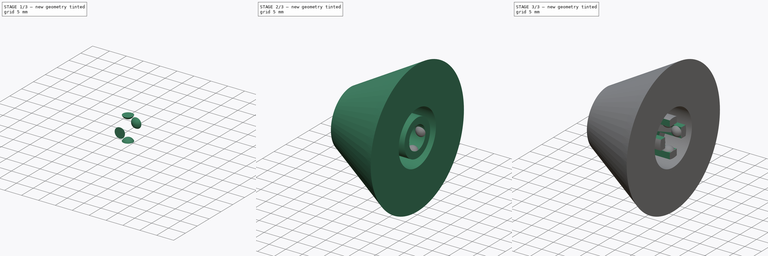
[diagram: build sequence overview — one tinted view per stage of 3, left to right]
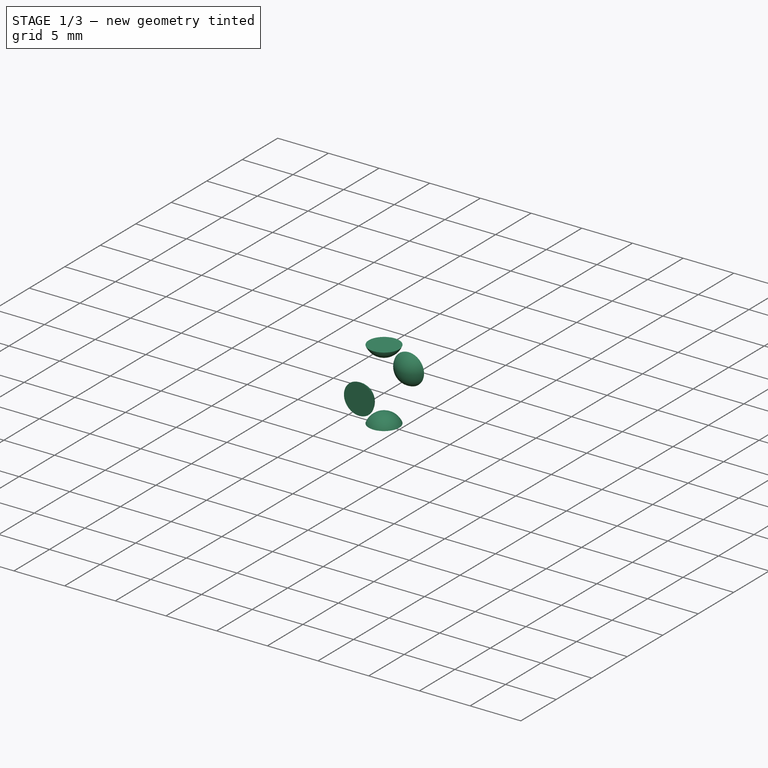
[diagram: stage 1 of 3 — iso view after this stage's code; geometry added in this stage tinted green]
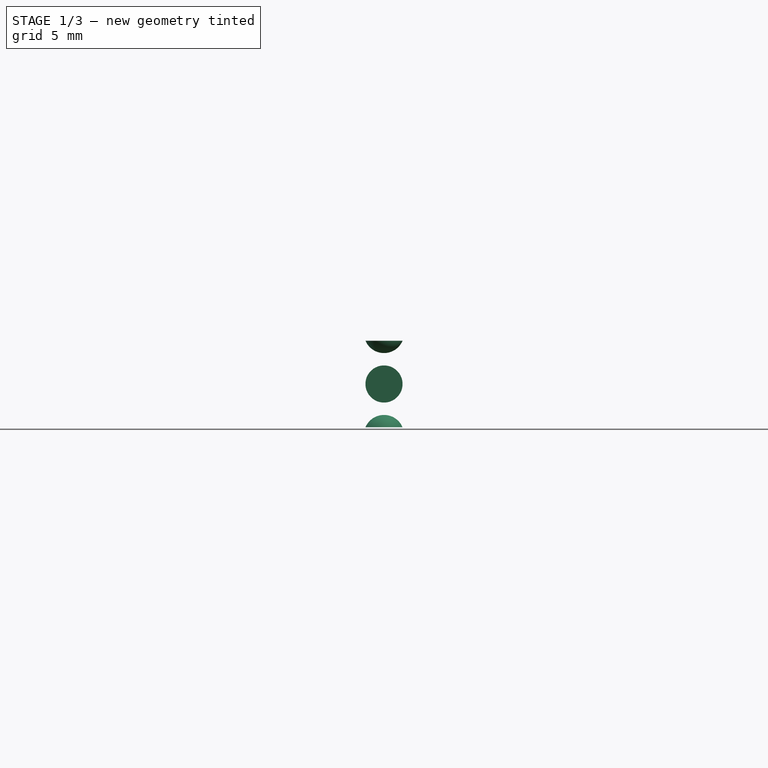
[diagram: stage 1 of 3 — front view after this stage's code; geometry added in this stage tinted green]
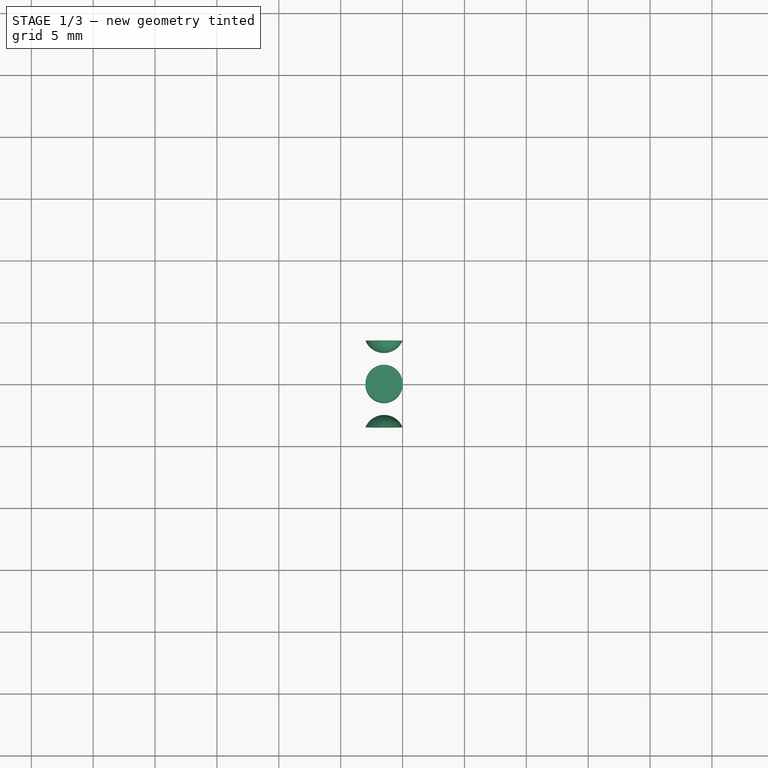
[diagram: stage 1 of 3 — top view after this stage's code; geometry added in this stage tinted green]
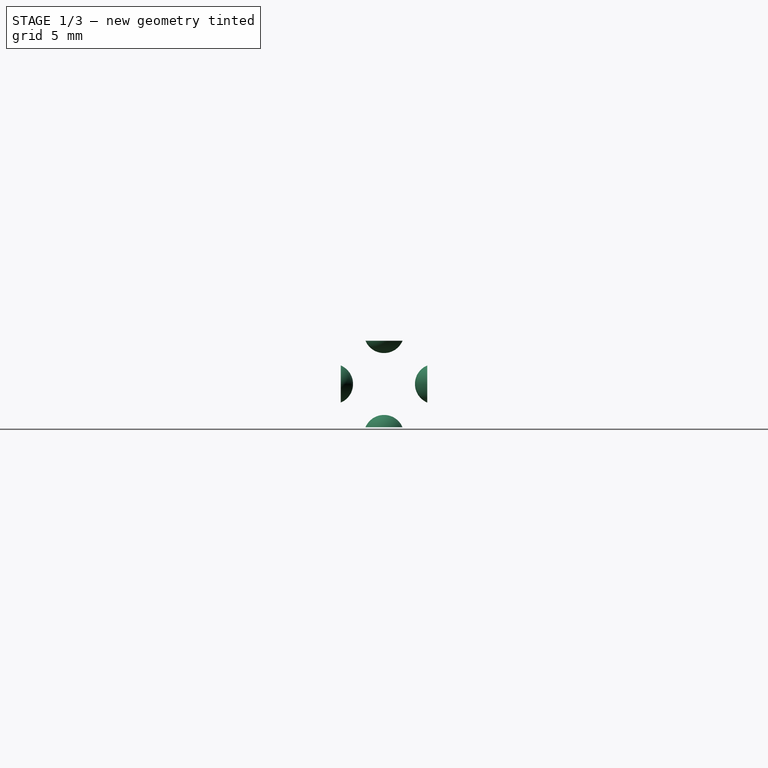
[diagram: stage 1 of 3 — right view after this stage's code; geometry added in this stage tinted green]
FCSTD DOCUMENT  (FreeCAD 0.17R13541 (Git))
Label: SewingmachineThreadStop
License: All rights reserved
LicenseURL: http://en.wikipedia.org/wiki/All_rights_reserved
objects: Sketcher::SketchObject×2, PartDesign::Revolution×1, PartDesign::Pocket×1, Spreadsheet::Sheet×1, Part::Sphere×1, Part::FeaturePython×1, PartDesign::Boolean×1, PartDesign::Body×1
note: 10 computed .brp shape members not serialized (recipe doc carries the construction recipe); baked Part::Feature solids carry a one-line shape summary decoded from their .brp

FEATURE [Spreadsheet::Sheet] Spreadsheet
  cells = A1=Clip bulge radius; B1(Clipbulgeradius)==Sketch001.Constraints.clipWidth / 2; C1=(r'); A2=clipBulgeHeight; B2(clipBulgeHeight)==1mm; C2=(h); A3=sphereRadius; B3(sphereRadius)==(Clipbulgeradius ^ 2 + clipBulgeHeight ^ 2) / (2 * clipBulgeHeight); A4=sphereAngle; B4(sphereAngle)==atan((sphereRadius - clipBulgeHeight) / Clipbulgeradius)
FEATURE [Part::Sphere] Sphere
  Angle1 = 22.6199
  Angle2 = 90
  Angle3 = 360
  AttacherType = Attacher::AttachEngine3D
  Placement = pos=(-1.5,-2e-08,-4.125) rot=(0,0,1;0rad)
  Radius = 1.625
  expr: Placement.Base.z = -Sketch.Constraints.radiusHole - Spreadsheet.sphereRadius + Spreadsheet.clipBulgeHeight
  expr: Placement.Base.x = -Spreadsheet.Clipbulgeradius
  expr: Radius = Spreadsheet.sphereRadius
  expr: Angle1 = Spreadsheet.sphereAngle
FEATURE [Part::FeaturePython] Array  # Draft array (typed FeaturePython)
  Angle = 360
  ArrayType = 1
  Axis = (1,0,0)
  Base = -> Sphere
  Center = (0,0,0)
  Fuse = false
  IntervalAxis = (0,0,0)
  IntervalX = (1,0,0)
  IntervalY = (0,1,0)
  IntervalZ = (0,0,0)
  NumberPolar = 4
  NumberX = 1
  NumberY = 1
  NumberZ = 1
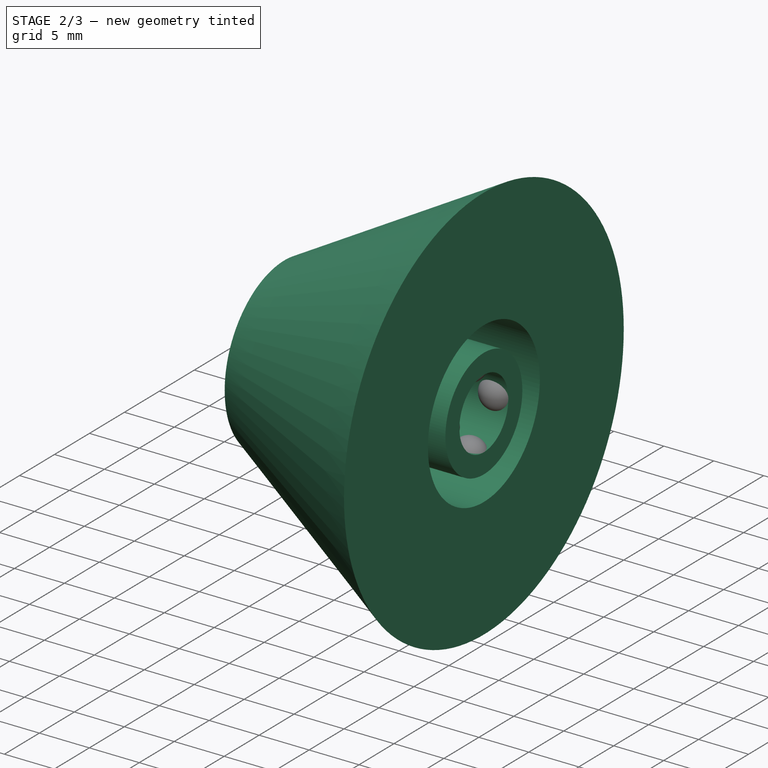
[diagram: stage 2 of 3 — iso view after this stage's code; geometry added in this stage tinted green]
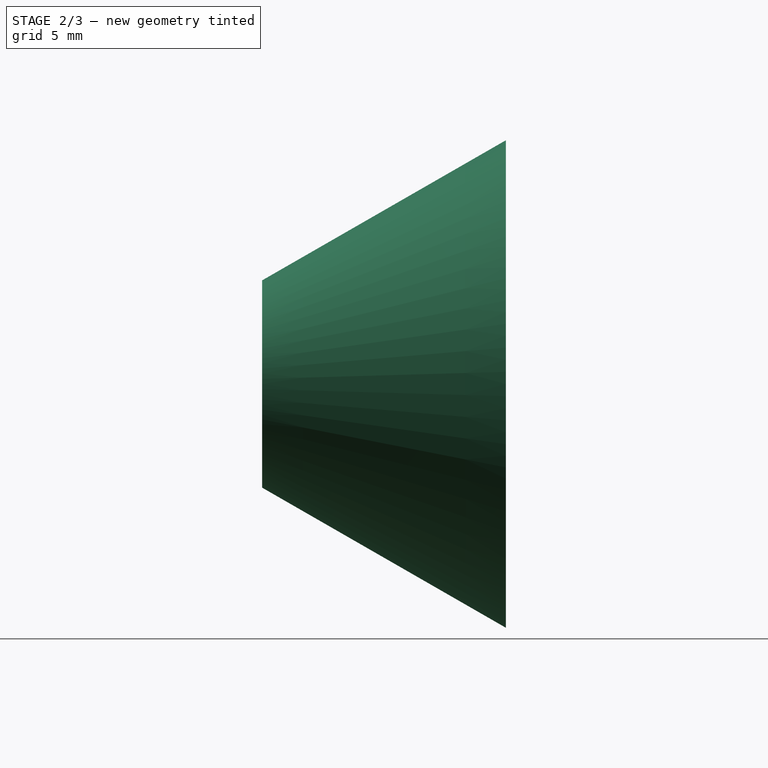
[diagram: stage 2 of 3 — front view after this stage's code; geometry added in this stage tinted green]
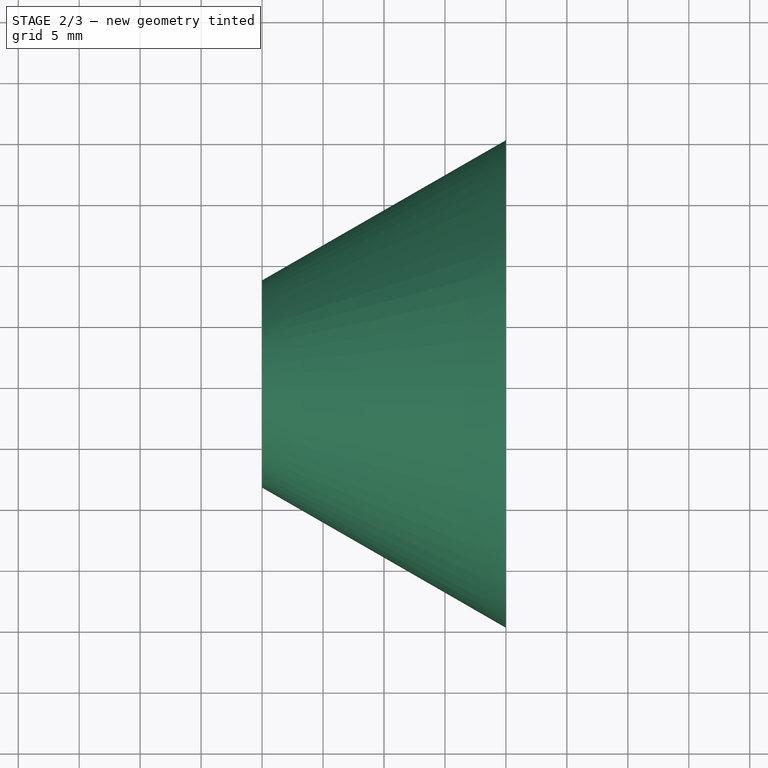
[diagram: stage 2 of 3 — top view after this stage's code; geometry added in this stage tinted green]
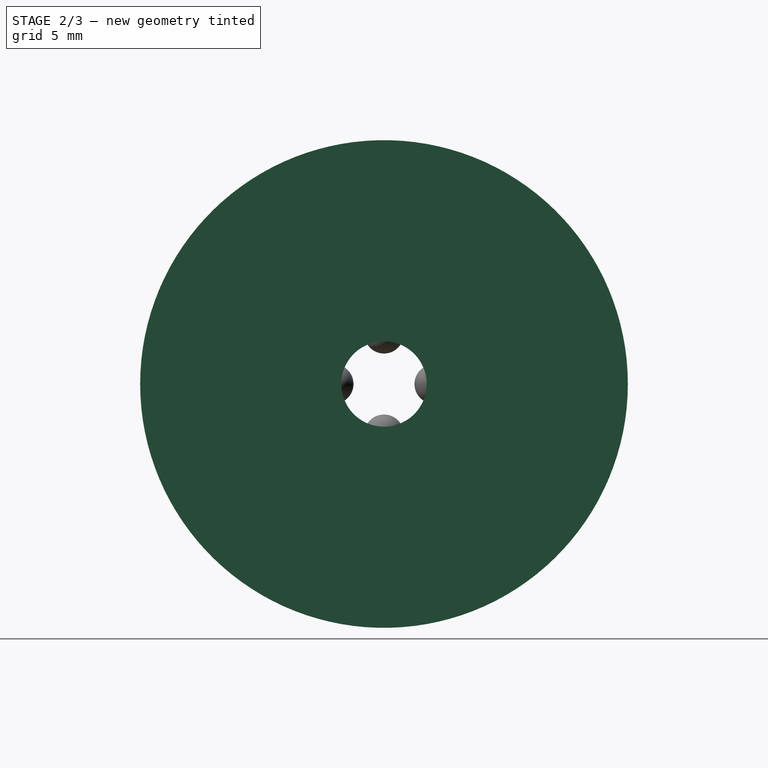
[diagram: stage 2 of 3 — right view after this stage's code; geometry added in this stage tinted green]
FEATURE [Sketcher::SketchObject] Sketch
  MapMode = 5
  Support = -> [XY_Plane]
  sketch-geometry (8):
    g0: LineSegment StartX=0 StartY=20 StartZ=0 EndX=0 EndY=8 EndZ=0
    g1: LineSegment StartX=0 StartY=8 StartZ=0 EndX=-7.5 EndY=8 EndZ=0
    g2: LineSegment StartX=-7.5 StartY=8 StartZ=0 EndX=-7.5 EndY=5.5 EndZ=0
    g3: LineSegment StartX=-7.5 StartY=5.5 StartZ=0 EndX=0 EndY=5.5 EndZ=0
    g4: LineSegment StartX=0 StartY=5.5 StartZ=0 EndX=0 EndY=3.5 EndZ=0
    g5: LineSegment StartX=0 StartY=3.5 StartZ=0 EndX=-20 EndY=3.5 EndZ=0
    g6: LineSegment StartX=-20 StartY=8.5 StartZ=0 EndX=0 EndY=20 EndZ=0
    g7: LineSegment StartX=-20 StartY=8.5 StartZ=0 EndX=-20 EndY=3.5 EndZ=0
  constraints (24):
    c: PointOnObject(g0,g-2)
    c: Vertical(g0)
    c: Coincident(g1,g0)
    c: Horizontal(g1)
    c: Coincident(g2,g1)
    c: Vertical(g2)
    c: PointOnObject(g3,g-2)
    c: Horizontal(g3)
    c: Coincident(g4,g3)
    c: PointOnObject(g4,g-2)
    c: Coincident(g5,g4)
    c: Horizontal(g5)
    c: Coincident(g6,g0)
    c: DistanceX(g5,g4) = 20
    c: DistanceY(g-1,g0) = 20  'radiusBig'
    c: DistanceY(g-1,g0) = 8  'radiusBigInner'
    c: DistanceY(g-1,g4) = 3.5  'radiusHole'
    c: Coincident(g2,g3)
    c: DistanceY(g4,g4) = 2  'clipThickness'
    c: DistanceX(g3,g3) = 7.5  'clipLength'
    c: Coincident(g7,g6)
    c: Coincident(g7,g5)
    c: Vertical(g7)
    c: DistanceY(g7,g7) = 5
FEATURE [PartDesign::Revolution] Revolution
  Angle = 360
  Axis = (1,0,0)
  Base = (0,0,0)
  Profile = -> Sketch
  ReferenceAxis = -> X_Axis
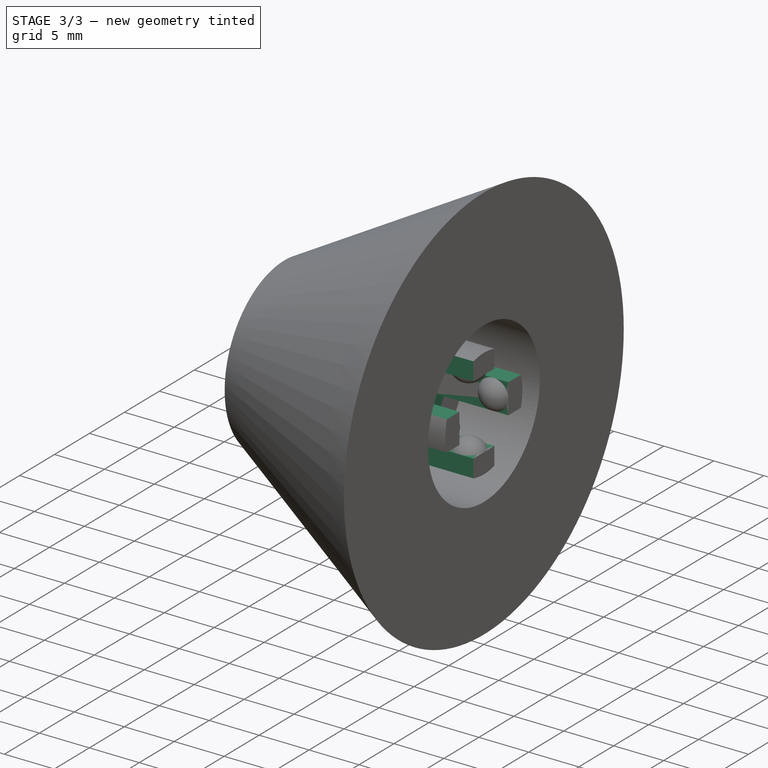
[diagram: stage 3 of 3 — iso view after this stage's code; geometry added in this stage tinted green]
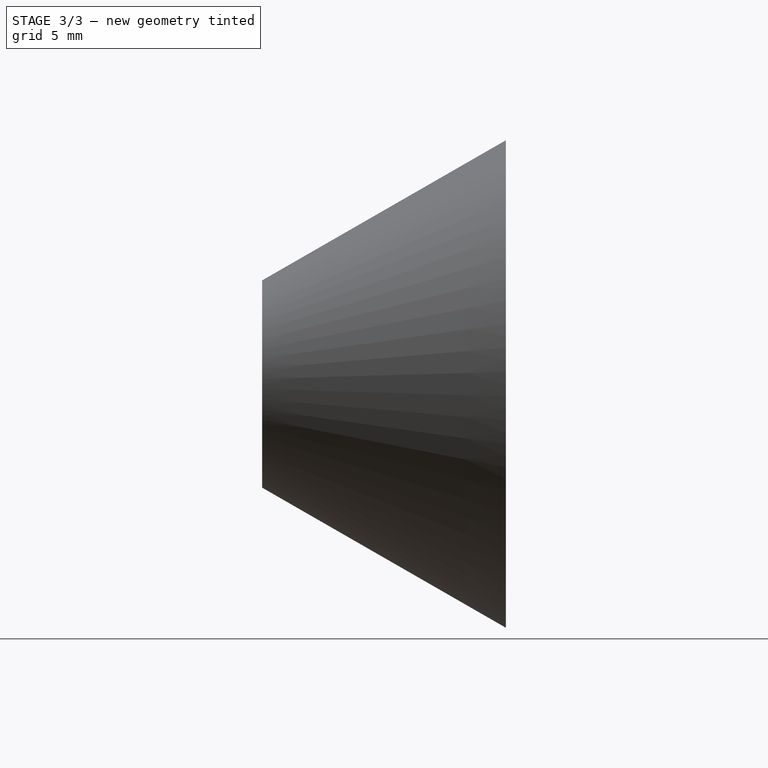
[diagram: stage 3 of 3 — front view after this stage's code; geometry added in this stage tinted green]
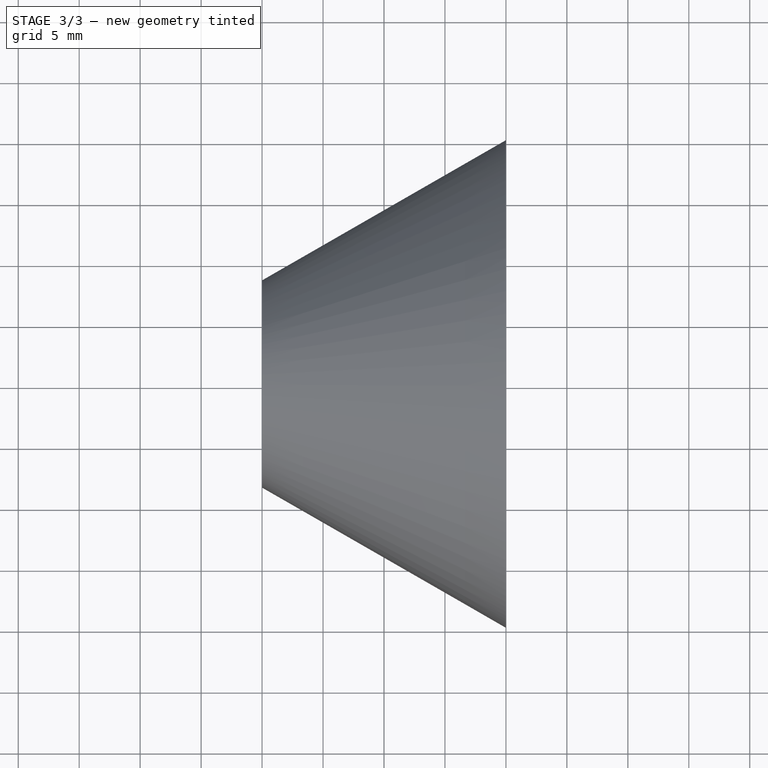
[diagram: stage 3 of 3 — top view after this stage's code; geometry added in this stage tinted green]
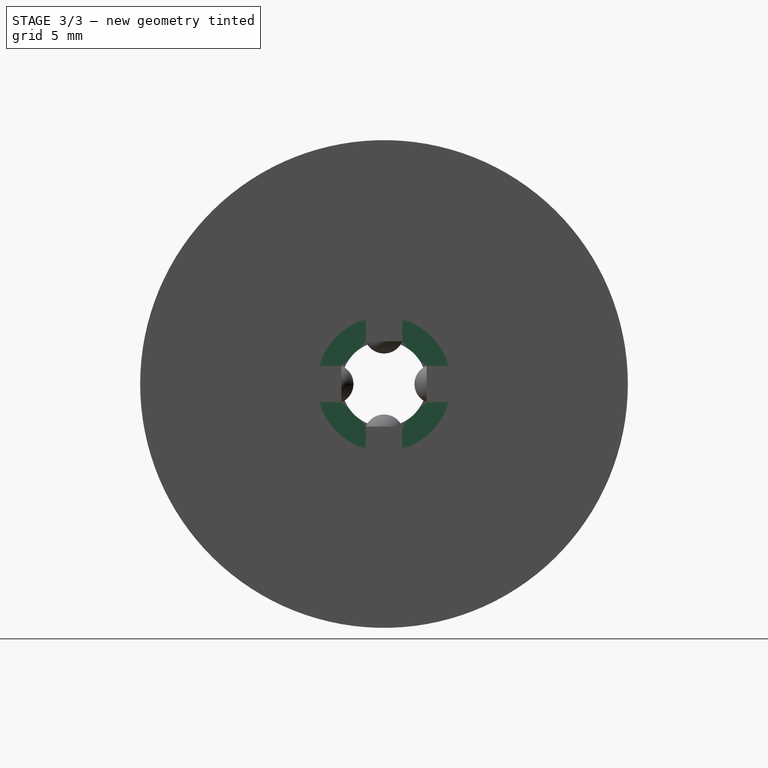
[diagram: stage 3 of 3 — right view after this stage's code; geometry added in this stage tinted green]
FEATURE [Sketcher::SketchObject] Sketch001
  MapMode = 5
  Placement = pos=(0,0,0) rot=(0.57735,0.57735,0.57735;2.0944rad)
  Support = -> [YZ_Plane]
  expr: Constraints[47] = Sketch.Constraints.radiusHole
  expr: Constraints[46] = Sketch.Constraints.radiusHole
  expr: Constraints[45] = Sketch.Constraints.radiusHole
  expr: Constraints[43] = Constraints.clipWidth / 2
  expr: Constraints[42] = Sketch.Constraints.radiusHole
  expr: Constraints[40] = Sketch.Constraints.clipThickness + Sketch.Constraints.radiusHole
  sketch-geometry (16):
    g0: LineSegment StartX=-1.5 StartY=3.5 StartZ=0 EndX=1.5 EndY=3.5 EndZ=0
    g1: LineSegment StartX=1.5 StartY=3.5 StartZ=0 EndX=1.5 EndY=6.27817 EndZ=0
    g2: LineSegment StartX=1.5 StartY=6.27817 StartZ=0 EndX=6.27817 EndY=1.5 EndZ=0
    g3: LineSegment StartX=6.27817 StartY=1.5 StartZ=0 EndX=3.5 EndY=1.5 EndZ=0
    g4: LineSegment StartX=3.5 StartY=1.5 StartZ=0 EndX=3.5 EndY=-1.5 EndZ=0
    g5: LineSegment StartX=3.5 StartY=-1.5 StartZ=0 EndX=6.27817 EndY=-1.5 EndZ=0
    g6: LineSegment StartX=6.27817 StartY=-1.5 StartZ=0 EndX=1.5 EndY=-6.27817 EndZ=0
    g7: LineSegment StartX=1.5 StartY=-6.27817 StartZ=0 EndX=1.5 EndY=-3.5 EndZ=0
    g8: LineSegment StartX=1.5 StartY=-3.5 StartZ=0 EndX=-1.5 EndY=-3.5 EndZ=0
    g9: LineSegment StartX=-1.5 StartY=-3.5 StartZ=0 EndX=-1.5 EndY=-6.27817 EndZ=0
    g10: LineSegment StartX=-1.5 StartY=-6.27817 StartZ=0 EndX=-6.27817 EndY=-1.5 EndZ=0
    g11: LineSegment StartX=-6.27817 StartY=-1.5 StartZ=0 EndX=-3.5 EndY=-1.5 EndZ=0
    g12: LineSegment StartX=-3.5 StartY=-1.5 StartZ=0 EndX=-3.5 EndY=1.5 EndZ=0
    g13: LineSegment StartX=-3.5 StartY=1.5 StartZ=0 EndX=-6.27817 EndY=1.5 EndZ=0
    g14: LineSegment StartX=-6.27817 StartY=1.5 StartZ=0 EndX=-1.5 EndY=6.27817 EndZ=0
    g15: LineSegment StartX=-1.5 StartY=6.27817 StartZ=0 EndX=-1.5 EndY=3.5 EndZ=0
  constraints (48):
    c: Horizontal(g0)
    c: Coincident(g1,g0)
    c: Vertical(g1)
    c: Horizontal(g3)
    c: Coincident(g4,g3)
    c: Vertical(g4)
    c: Coincident(g5,g4)
    c: Horizontal(g5)
    c: Coincident(g6,g5)
    c: Coincident(g7,g6)
    c: Vertical(g7)
    c: Coincident(g8,g7)
    c: Horizontal(g8)
    c: Coincident(g9,g8)
    c: Vertical(g9)
    c: Coincident(g11,g10)
    c: Horizontal(g11)
    c: Coincident(g12,g11)
    c: Vertical(g12)
    c: Coincident(g13,g12)
    c: Horizontal(g13)
    c: Coincident(g14,g13)
    c: Coincident(g15,g14)
    c: Coincident(g15,g0)
    c: Vertical(g15)
    c: Coincident(g2,g3)
    c: Coincident(g2,g1)
    c: Equal(g0,g4)
    c: Equal(g4,g12)
    c: Equal(g12,g8)
    c: Equal(g11,g13)
    c: Equal(g13,g15)
    c: Equal(g15,g1)
    c: Equal(g1,g3)
    c: Equal(g3,g5)
    c: Equal(g5,g7)
    c: Equal(g7,g9)
    c: Equal(g14,g2)
    c: Equal(g2,g6)
    c: Equal(g6,g10)
    c: Distance(g-1,g14) = 5.5
    c: DistanceX(g0,g0) = 3  'clipWidth'
    c: DistanceY(g-1,g0) = 3.5
    c: DistanceX(g0,g-1) = 1.5
    c: Coincident(g9,g10)
    c: DistanceX(g11,g-1) = 3.5
    c: DistanceX(g-1,g4) = 3.5
    c: DistanceY(g7,g-1) = 3.5
FEATURE [PartDesign::Pocket] Pocket
  BaseFeature = -> Revolution
  Length = 7.5
  Length2 = 100
  Profile = -> Sketch001
  Type = 0
  expr: Length = Sketch.Constraints.clipLength
FEATURE [PartDesign::Boolean] Boolean
  BaseFeature = -> Pocket
  Group = -> [Sphere,Array]
  Type = 0
FEATURE [PartDesign::Body] Body
  Group = -> [Sketch,Revolution,Sketch001,Pocket,Boolean]
  Origin = -> Origin
  Tip = -> Boolean
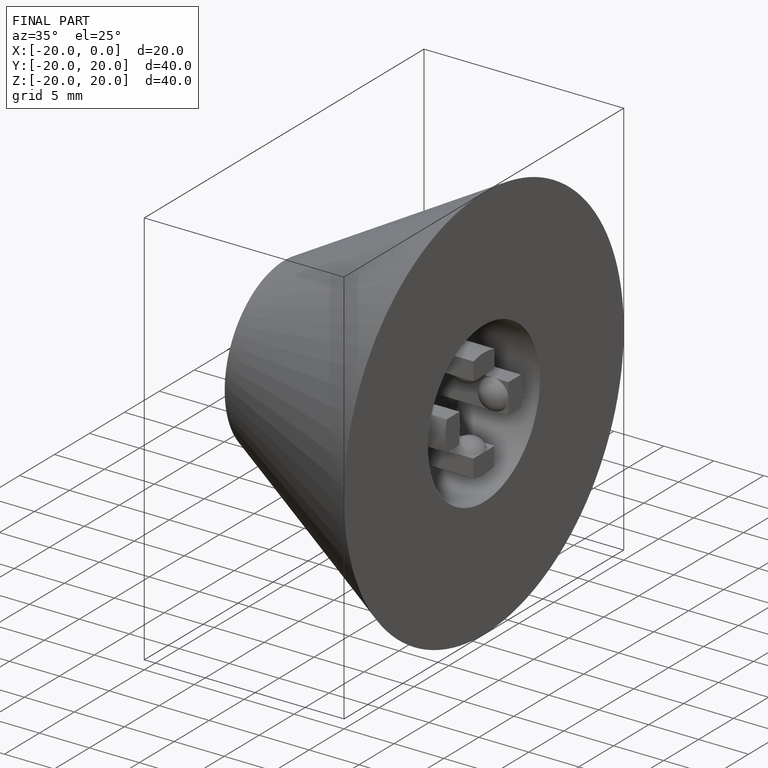
[diagram: finished part — iso view with bounding-box wireframe]
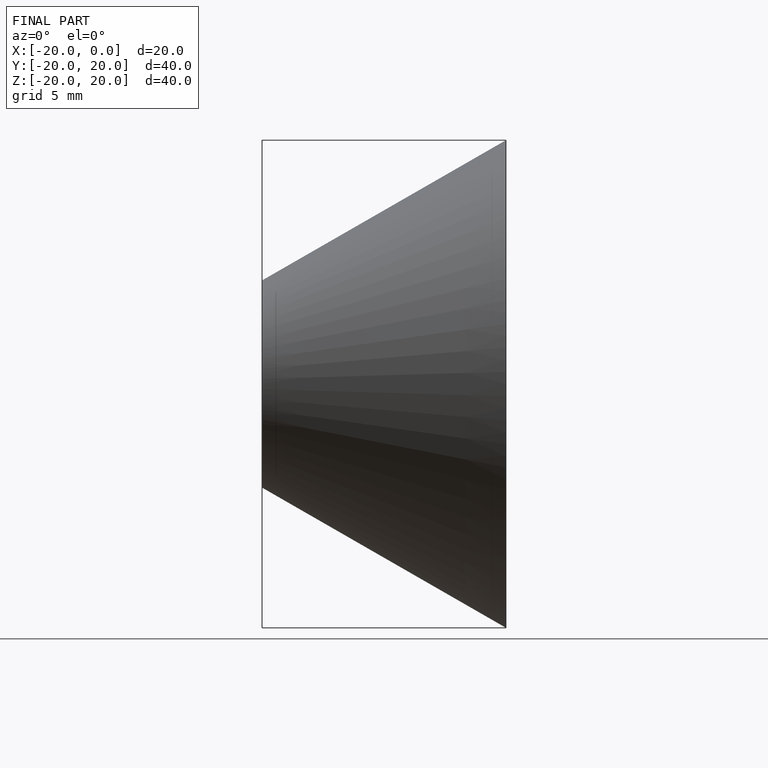
[diagram: finished part — front view with bounding-box wireframe]
